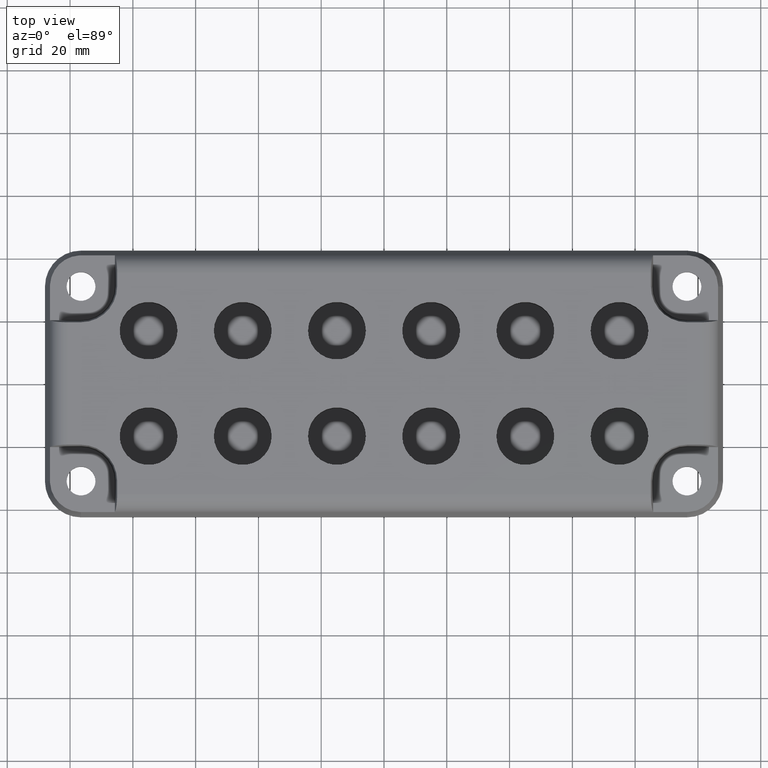
[diagram: clean part render]
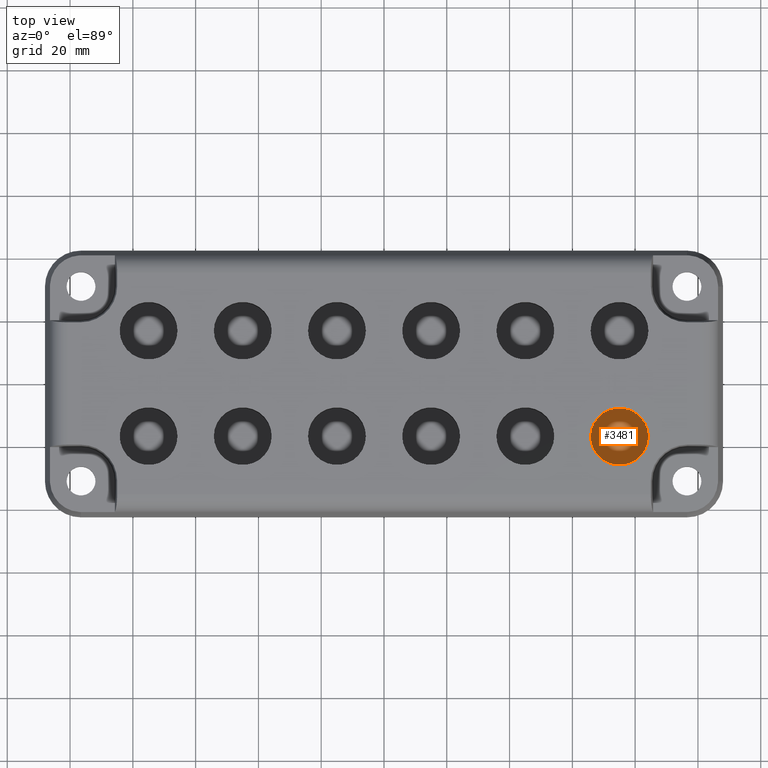
[diagram: same view with one face highlighted and labeled with its STEP entity id]
A machine part, top view. The second image highlights one B-rep face of the part: STEP entity #3481.
In plain terms, the highlighted planar face has unit normal (0, 0, 1).
Its self-contained STEP definition (entity closure, byte-faithful):
#98 = ORIENTED_EDGE ( 'NONE', *, *, #1858, .T. ) ;
#483 = EDGE_LOOP ( 'NONE', ( #4481, #98 ) ) ;
#633 = AXIS2_PLACEMENT_3D ( 'NONE', #1287, #949, #3194 ) ;
#765 = FACE_OUTER_BOUND ( 'NONE', #483, .T. ) ;
#949 = DIRECTION ( 'NONE',  ( 0.0000000000000000000, 0.0000000000000000000, 1.000000000000000000 ) ) ;
#1020 = DIRECTION ( 'NONE',  ( 1.000000000000000000, 0.0000000000000000000, -0.0000000000000000000 ) ) ;
#1287 = CARTESIAN_POINT ( 'NONE',  ( 75.00000000000000000, -16.80000000000001100, -6.000000000000000000 ) ) ;
#1401 = PLANE ( 'NONE',  #3345 ) ;
#1767 = DIRECTION ( 'NONE',  ( 0.0000000000000000000, 0.0000000000000000000, 1.000000000000000000 ) ) ;
#1858 = EDGE_CURVE ( 'NONE', #4857, #4523, #3144, .T. ) ;
#1920 = CARTESIAN_POINT ( 'NONE',  ( 75.00000000000000000, -16.80000000000001100, -6.000000000000000000 ) ) ;
#2351 = AXIS2_PLACEMENT_3D ( 'NONE', #1920, #4202, #3459 ) ;
#3144 = CIRCLE ( 'NONE', #633, 9.199999999999999300 ) ;
#3194 = DIRECTION ( 'NONE',  ( 1.000000000000000000, 0.0000000000000000000, 0.0000000000000000000 ) ) ;
#3345 = AXIS2_PLACEMENT_3D ( 'NONE', #4006, #1767, #1020 ) ;
#3459 = DIRECTION ( 'NONE',  ( 1.000000000000000000, 0.0000000000000000000, 0.0000000000000000000 ) ) ;
#3481 = ADVANCED_FACE ( 'NONE', ( #765 ), #1401, .T. ) ;
#3642 = CARTESIAN_POINT ( 'NONE',  ( 65.79999999999999700, -16.80000000000001100, -6.000000000000000000 ) ) ;
#4006 = CARTESIAN_POINT ( 'NONE',  ( 75.00000000000000000, -16.80000000000001100, -6.000000000000000000 ) ) ;
#4202 = DIRECTION ( 'NONE',  ( 0.0000000000000000000, 0.0000000000000000000, 1.000000000000000000 ) ) ;
#4249 = CARTESIAN_POINT ( 'NONE',  ( 84.20000000000000300, -16.80000000000001100, -6.000000000000000000 ) ) ;
#4412 = CIRCLE ( 'NONE', #2351, 9.199999999999999300 ) ;
#4481 = ORIENTED_EDGE ( 'NONE', *, *, #4614, .T. ) ;
#4523 = VERTEX_POINT ( 'NONE', #4249 ) ;
#4614 = EDGE_CURVE ( 'NONE', #4523, #4857, #4412, .T. ) ;
#4857 = VERTEX_POINT ( 'NONE', #3642 ) ;